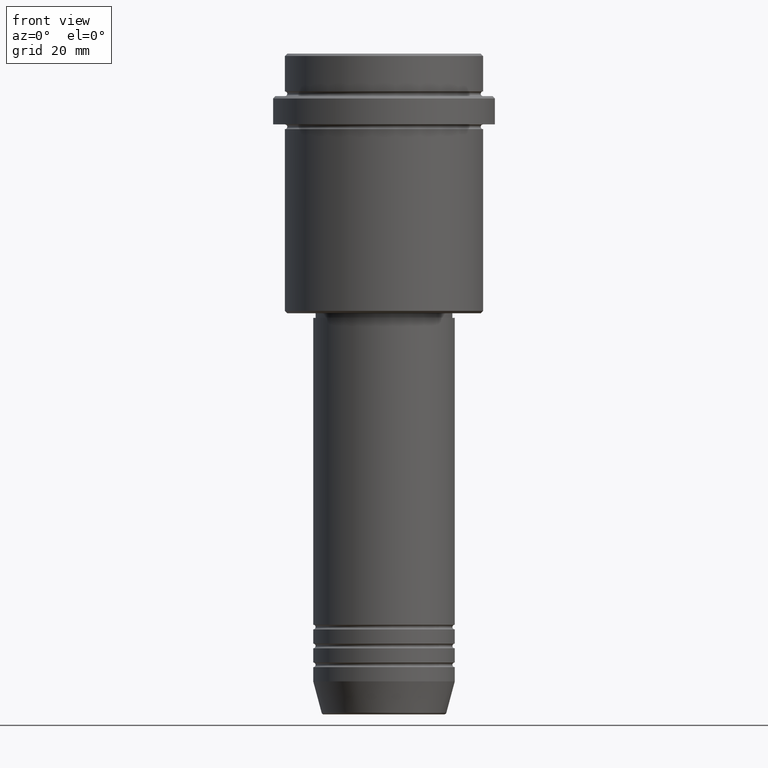
[diagram: clean part render]
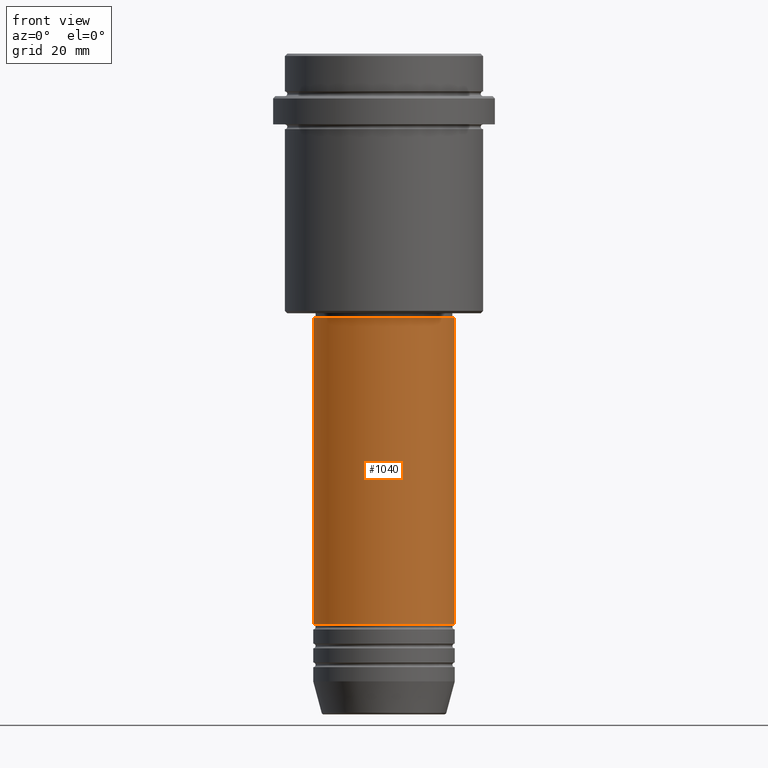
[diagram: same view with one face highlighted and labeled with its STEP entity id]
A machine part, front view. The second image highlights one B-rep face of the part: STEP entity #1040.
In plain terms, the highlighted cylindrical surface (partial cylindrical patch) has radius 15 mm, axis along (-0, -0, 1).
Its self-contained STEP definition (entity closure, byte-faithful):
#22 = VERTEX_POINT ( 'NONE', #557 ) ;
#101 = VECTOR ( 'NONE', #876, 1000.000000000000000 ) ;
#143 = CARTESIAN_POINT ( 'NONE',  ( 0.000000000000000000, 0.000000000000000000, -56.00000000000000711 ) ) ;
#146 = LINE ( 'NONE', #1015, #1071 ) ;
#162 = ORIENTED_EDGE ( 'NONE', *, *, #1121, .T. ) ;
#204 = CARTESIAN_POINT ( 'NONE',  ( -15.00000000000000000, 1.836970198721029589E-15, -120.9999999999999005 ) ) ;
#208 = CARTESIAN_POINT ( 'NONE',  ( 15.00000000000000000, 0.000000000000000000, -120.9999999999999005 ) ) ;
#211 = CARTESIAN_POINT ( 'NONE',  ( 0.000000000000000000, 0.000000000000000000, -120.9999999999999005 ) ) ;
#311 = DIRECTION ( 'NONE',  ( -0.000000000000000000, -0.000000000000000000, 1.000000000000000000 ) ) ;
#368 = EDGE_LOOP ( 'NONE', ( #868, #162, #593, #764 ) ) ;
#479 = VERTEX_POINT ( 'NONE', #208 ) ;
#482 = DIRECTION ( 'NONE',  ( -0.000000000000000000, -0.000000000000000000, 1.000000000000000000 ) ) ;
#518 = AXIS2_PLACEMENT_3D ( 'NONE', #211, #311, #860 ) ;
#557 = CARTESIAN_POINT ( 'NONE',  ( -15.00000000000000000, 1.836970198721029589E-15, -56.00000000000000711 ) ) ;
#560 = AXIS2_PLACEMENT_3D ( 'NONE', #143, #482, #1118 ) ;
#575 = EDGE_CURVE ( 'NONE', #22, #767, #905, .T. ) ;
#576 = CARTESIAN_POINT ( 'NONE',  ( 0.000000000000000000, 0.000000000000000000, 0.000000000000000000 ) ) ;
#584 = AXIS2_PLACEMENT_3D ( 'NONE', #576, #1117, #1329 ) ;
#593 = ORIENTED_EDGE ( 'NONE', *, *, #797, .T. ) ;
#764 = ORIENTED_EDGE ( 'NONE', *, *, #575, .F. ) ;
#767 = VERTEX_POINT ( 'NONE', #1385 ) ;
#797 = EDGE_CURVE ( 'NONE', #479, #767, #1183, .T. ) ;
#860 = DIRECTION ( 'NONE',  ( 1.000000000000000000, 0.000000000000000000, 0.000000000000000000 ) ) ;
#868 = ORIENTED_EDGE ( 'NONE', *, *, #1398, .F. ) ;
#876 = DIRECTION ( 'NONE',  ( -0.000000000000000000, -0.000000000000000000, 1.000000000000000000 ) ) ;
#905 = CIRCLE ( 'NONE', #560, 15.00000000000000000 ) ;
#906 = VERTEX_POINT ( 'NONE', #204 ) ;
#1015 = CARTESIAN_POINT ( 'NONE',  ( -15.00000000000000000, 1.836970198721029589E-15, 0.000000000000000000 ) ) ;
#1020 = FACE_OUTER_BOUND ( 'NONE', #368, .T. ) ;
#1025 = DIRECTION ( 'NONE',  ( -0.000000000000000000, -0.000000000000000000, 1.000000000000000000 ) ) ;
#1040 = ADVANCED_FACE ( 'NONE', ( #1020 ), #1210, .T. ) ;
#1071 = VECTOR ( 'NONE', #1025, 1000.000000000000000 ) ;
#1117 = DIRECTION ( 'NONE',  ( -0.000000000000000000, -0.000000000000000000, 1.000000000000000000 ) ) ;
#1118 = DIRECTION ( 'NONE',  ( 1.000000000000000000, 0.000000000000000000, 0.000000000000000000 ) ) ;
#1121 = EDGE_CURVE ( 'NONE', #906, #479, #1133, .T. ) ;
#1133 = CIRCLE ( 'NONE', #518, 15.00000000000000000 ) ;
#1183 = LINE ( 'NONE', #1188, #101 ) ;
#1188 = CARTESIAN_POINT ( 'NONE',  ( 15.00000000000000000, 0.000000000000000000, 0.000000000000000000 ) ) ;
#1210 = CYLINDRICAL_SURFACE ( 'NONE', #584, 15.00000000000000000 ) ;
#1329 = DIRECTION ( 'NONE',  ( 1.000000000000000000, 0.000000000000000000, 0.000000000000000000 ) ) ;
#1385 = CARTESIAN_POINT ( 'NONE',  ( 15.00000000000000000, 0.000000000000000000, -56.00000000000000711 ) ) ;
#1398 = EDGE_CURVE ( 'NONE', #906, #22, #146, .T. ) ;